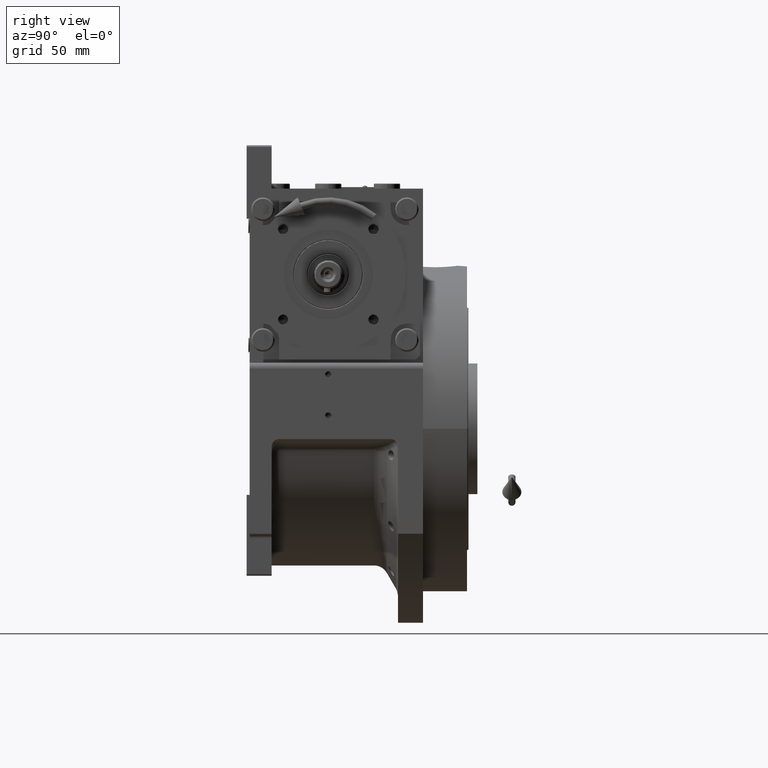
[diagram: clean part render]
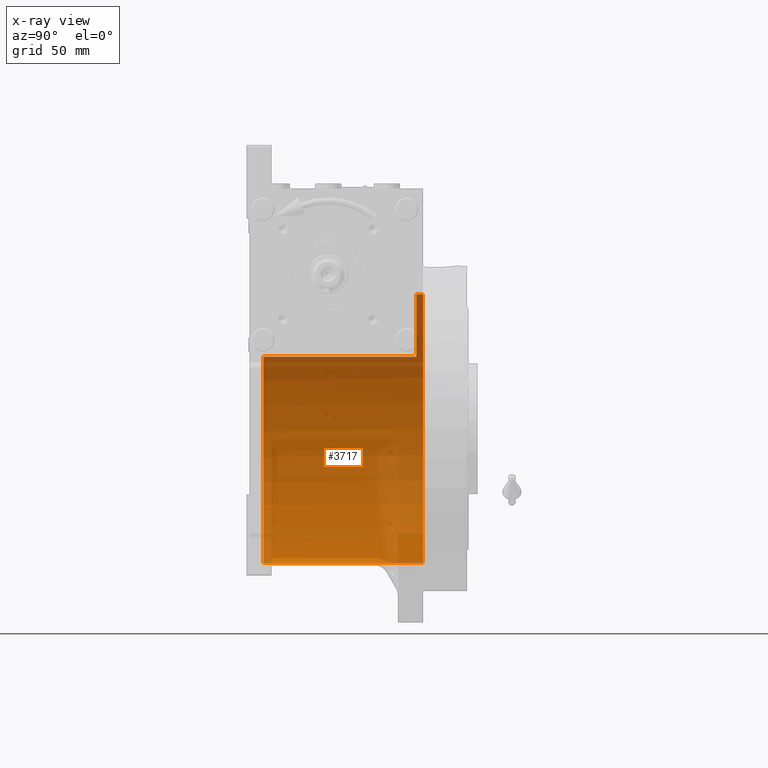
[diagram: x-ray — body ghosted, one internal face saturated and labeled with its STEP entity id]
A machine part, right view, then the same camera in x-ray: the body is ghosted and one INTERNAL B-rep face — a face not visible from any outside direction — is saturated and labeled: STEP entity #3717.
In plain terms, the highlighted cylindrical surface (partial cylindrical patch) has radius 91.5 mm, axis along (0, -1, 0).
Its self-contained STEP definition (entity closure, byte-faithful):
#260 = VERTEX_POINT ( 'NONE', #16111 ) ;
#1331 = VERTEX_POINT ( 'NONE', #74410 ) ;
#1852 = CYLINDRICAL_SURFACE ( 'NONE', #6512, 91.50000000000000000 ) ;
#3717 = ADVANCED_FACE ( 'NONE', ( #48699 ), #1852, .F. ) ;
#3973 = CARTESIAN_POINT ( 'NONE',  ( 0.000000000000000000, -44.00000000000000000, 0.000000000000000000 ) ) ;
#6512 = AXIS2_PLACEMENT_3D ( 'NONE', #25513, #50247, #72894 ) ;
#7963 = VECTOR ( 'NONE', #22501, 1000.000000000000000 ) ;
#11083 = ORIENTED_EDGE ( 'NONE', *, *, #32842, .F. ) ;
#15496 = VECTOR ( 'NONE', #101101, 1000.000000000000000 ) ;
#15577 = ORIENTED_EDGE ( 'NONE', *, *, #38005, .T. ) ;
#15875 = DIRECTION ( 'NONE',  ( 0.000000000000000000, -1.000000000000000000, 0.000000000000000000 ) ) ;
#16111 = CARTESIAN_POINT ( 'NONE',  ( -77.27386362800814368, 60.00000000000000000, 48.99999999999998579 ) ) ;
#16426 = DIRECTION ( 'NONE',  ( 0.000000000000000000, 0.000000000000000000, 1.000000000000000000 ) ) ;
#18930 = ORIENTED_EDGE ( 'NONE', *, *, #59002, .F. ) ;
#20807 = VERTEX_POINT ( 'NONE', #37207 ) ;
#22501 = DIRECTION ( 'NONE',  ( 0.000000000000000000, -1.000000000000000000, 0.000000000000000000 ) ) ;
#25077 = DIRECTION ( 'NONE',  ( 0.000000000000000000, 1.000000000000000000, 0.000000000000000000 ) ) ;
#25513 = CARTESIAN_POINT ( 'NONE',  ( 0.000000000000000000, 69.00000000000004263, 0.000000000000000000 ) ) ;
#26741 = CARTESIAN_POINT ( 'NONE',  ( 0.000000000000000000, 60.00000000000000000, 0.000000000000000000 ) ) ;
#27242 = DIRECTION ( 'NONE',  ( 0.000000000000000000, 1.000000000000000000, 0.000000000000000000 ) ) ;
#29284 = CIRCLE ( 'NONE', #37516, 91.50000000000000000 ) ;
#32842 = EDGE_CURVE ( 'NONE', #1331, #63435, #87906, .T. ) ;
#33484 = VECTOR ( 'NONE', #15875, 1000.000000000000000 ) ;
#37207 = CARTESIAN_POINT ( 'NONE',  ( 0.000000000000000000, 64.50000000000000000, -91.50000000000000000 ) ) ;
#37516 = AXIS2_PLACEMENT_3D ( 'NONE', #101394, #79278, #16426 ) ;
#38005 = EDGE_CURVE ( 'NONE', #63358, #93337, #62723, .T. ) ;
#45985 = CARTESIAN_POINT ( 'NONE',  ( -77.27386362800812947, 69.00000000000004263, 48.99999999999998579 ) ) ;
#46769 = CARTESIAN_POINT ( 'NONE',  ( 1.120551821219827868E-14, 69.00000000000004263, 91.50000000000000000 ) ) ;
#48699 = FACE_OUTER_BOUND ( 'NONE', #60217, .T. ) ;
#48961 = CIRCLE ( 'NONE', #52277, 91.50000000000000000 ) ;
#50247 = DIRECTION ( 'NONE',  ( 0.000000000000000000, -1.000000000000000000, 0.000000000000000000 ) ) ;
#52277 = AXIS2_PLACEMENT_3D ( 'NONE', #26741, #27242, #60176 ) ;
#52861 = EDGE_CURVE ( 'NONE', #63435, #260, #85669, .T. ) ;
#54144 = ORIENTED_EDGE ( 'NONE', *, *, #52861, .F. ) ;
#59002 = EDGE_CURVE ( 'NONE', #20807, #1331, #68350, .T. ) ;
#60176 = DIRECTION ( 'NONE',  ( 1.776356839400250465E-15, 0.000000000000000000, -1.000000000000000000 ) ) ;
#60217 = EDGE_LOOP ( 'NONE', ( #69011, #15577, #62134, #54144, #11083, #18930 ) ) ;
#61803 = CARTESIAN_POINT ( 'NONE',  ( 1.120551821219827868E-14, 64.50000000000000000, 91.50000000000000000 ) ) ;
#62134 = ORIENTED_EDGE ( 'NONE', *, *, #74721, .F. ) ;
#62723 = LINE ( 'NONE', #46769, #33484 ) ;
#63358 = VERTEX_POINT ( 'NONE', #61803 ) ;
#63435 = VERTEX_POINT ( 'NONE', #70035 ) ;
#65102 = CARTESIAN_POINT ( 'NONE',  ( 1.120551821219827868E-14, 60.00000000000000000, 91.50000000000000000 ) ) ;
#68350 = LINE ( 'NONE', #91050, #7963 ) ;
#69011 = ORIENTED_EDGE ( 'NONE', *, *, #89695, .F. ) ;
#70035 = CARTESIAN_POINT ( 'NONE',  ( -77.27386362800814368, -44.00000000000000000, 49.00000000000000000 ) ) ;
#72894 = DIRECTION ( 'NONE',  ( 0.000000000000000000, 0.000000000000000000, -1.000000000000000000 ) ) ;
#74410 = CARTESIAN_POINT ( 'NONE',  ( 0.000000000000000000, -44.00000000000000000, -91.50000000000000000 ) ) ;
#74721 = EDGE_CURVE ( 'NONE', #260, #93337, #48961, .T. ) ;
#79278 = DIRECTION ( 'NONE',  ( -0.000000000000000000, -1.000000000000000000, -0.000000000000000000 ) ) ;
#85669 = LINE ( 'NONE', #45985, #15496 ) ;
#87906 = CIRCLE ( 'NONE', #92790, 91.50000000000000000 ) ;
#87932 = DIRECTION ( 'NONE',  ( 0.000000000000000000, 0.000000000000000000, 1.000000000000000000 ) ) ;
#89695 = EDGE_CURVE ( 'NONE', #63358, #20807, #29284, .T. ) ;
#91050 = CARTESIAN_POINT ( 'NONE',  ( 0.000000000000000000, 69.00000000000004263, -91.50000000000000000 ) ) ;
#92790 = AXIS2_PLACEMENT_3D ( 'NONE', #3973, #25077, #87932 ) ;
#93337 = VERTEX_POINT ( 'NONE', #65102 ) ;
#101101 = DIRECTION ( 'NONE',  ( -0.000000000000000000, 1.000000000000000000, -0.000000000000000000 ) ) ;
#101394 = CARTESIAN_POINT ( 'NONE',  ( 0.000000000000000000, 64.50000000000000000, 0.000000000000000000 ) ) ;